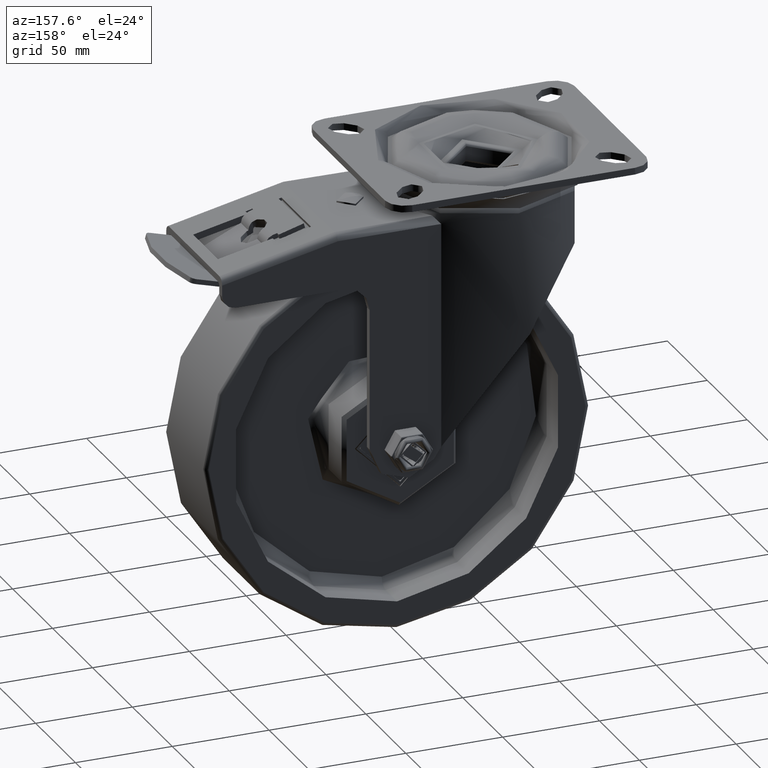
[diagram: clean part render]
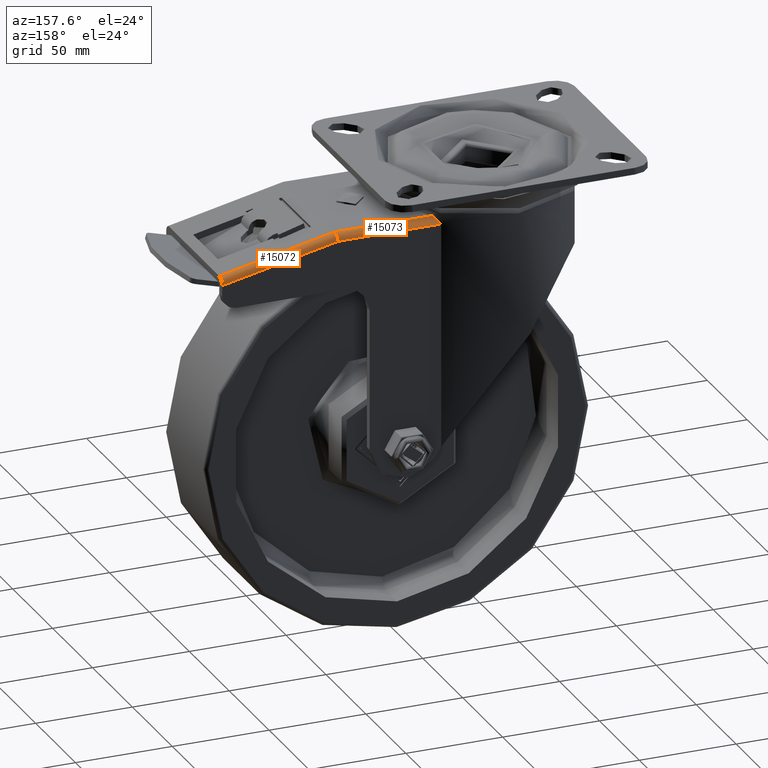
[diagram: same view with one multi-face feature highlighted, each face labeled with its STEP entity id]
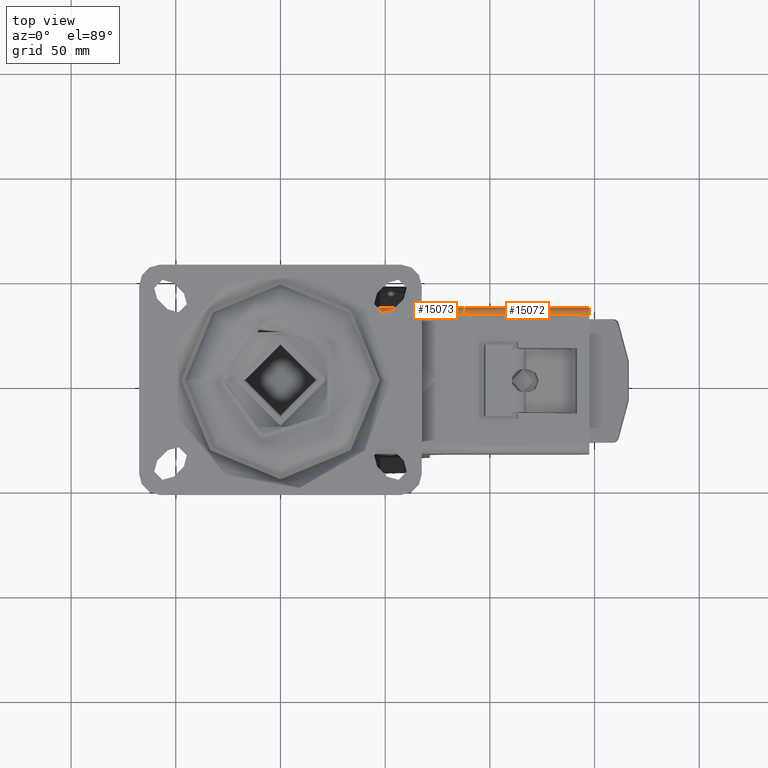
[diagram: same view with one multi-face feature highlighted, each face labeled with its STEP entity id]
A machine part, auxiliary view. The highlighted faces form ONE feature: a constant-radius fillet chain: 2 tangent blend faces with common blend radius 3.5 mm. The faces share edges in the B-rep.
A second angle (top view) of the same feature is appended — it is thin or edge-on in the first view.
Their STEP definitions:
[1] entity #15073 (Cylinder):
#40=ELLIPSE('',#16502,3.52034161889912,3.5);
#622=B_SPLINE_CURVE_WITH_KNOTS('',3,(#29073,#29074,#29075,#29076,#29077,
#29078,#29079,#29080,#29081,#29082),.UNSPECIFIED.,.F.,.F.,(4,2,2,2,4),(-0.625228901705066,
-0.444294595247492,-0.263360288789919,-0.13168014439496,0.),
 .UNSPECIFIED.);
#2406=FACE_OUTER_BOUND('',#3400,.T.);
#3400=EDGE_LOOP('',(#12455,#12456,#12457,#12458));
#4332=LINE('',#29071,#5395);
#4333=LINE('',#29083,#5396);
#5395=VECTOR('',#19138,10.);
#5396=VECTOR('',#19139,10.);
#7302=VERTEX_POINT('',#29061);
#7305=VERTEX_POINT('',#29066);
#7306=VERTEX_POINT('',#29070);
#7307=VERTEX_POINT('',#29072);
#9114=EDGE_CURVE('',#7305,#7302,#40,.T.);
#9115=EDGE_CURVE('',#7305,#7306,#4332,.T.);
#9116=EDGE_CURVE('',#7306,#7307,#622,.F.);
#9117=EDGE_CURVE('',#7307,#7302,#4333,.T.);
#12455=ORIENTED_EDGE('',*,*,#9115,.T.);
#12456=ORIENTED_EDGE('',*,*,#9116,.T.);
#12457=ORIENTED_EDGE('',*,*,#9117,.T.);
#12458=ORIENTED_EDGE('',*,*,#9114,.F.);
#14460=CYLINDRICAL_SURFACE('',#16503,3.5);
#15073=ADVANCED_FACE('',(#2406),#14460,.T.);
#16502=AXIS2_PLACEMENT_3D('',#29068,#19134,#19135);
#16503=AXIS2_PLACEMENT_3D('',#29069,#19136,#19137);
#19134=DIRECTION('center_axis',(0.994221691784138,0.,-0.107346297495005));
#19135=DIRECTION('ref_axis',(0.107346297495005,-1.13030830670877E-15,0.994221691784138));
#19136=DIRECTION('center_axis',(-1.,-1.24196705560202E-16,0.));
#19137=DIRECTION('ref_axis',(0.,0.707106781186548,0.707106781186548));
#19138=DIRECTION('',(-1.,-1.24196705560202E-16,0.));
#19139=DIRECTION('',(1.,1.24196705560202E-16,0.));
#29061=CARTESIAN_POINT('',(88.,31.5,-18.5));
#29066=CARTESIAN_POINT('',(87.6221043612936,35.,-22.));
#29068=CARTESIAN_POINT('Origin',(87.6221043612936,31.5,-22.));
#29069=CARTESIAN_POINT('Origin',(124.439903522969,31.5,-22.));
#29070=CARTESIAN_POINT('',(34.2928563989645,35.,-22.));
#29071=CARTESIAN_POINT('',(124.439903522969,35.,-22.));
#29072=CARTESIAN_POINT('',(37.5333185316726,31.5,-18.5));
#29073=CARTESIAN_POINT('Ctrl Pts',(37.5333185316726,31.5,-18.5));
#29074=CARTESIAN_POINT('Ctrl Pts',(37.1456021606921,31.9619772079986,-18.5));
#29075=CARTESIAN_POINT('Ctrl Pts',(36.7179669053213,32.4525501720949,-18.5956480322589));
#29076=CARTESIAN_POINT('Ctrl Pts',(35.8931427874258,33.362544974747,-18.9953552198696));
#29077=CARTESIAN_POINT('Ctrl Pts',(35.4960317121137,33.7824137014867,-19.2985568964875));
#29078=CARTESIAN_POINT('Ctrl Pts',(34.9320772658024,34.3637362242783,-19.9542122133705));
#29079=CARTESIAN_POINT('Ctrl Pts',(34.7032505279086,34.5938646742957,-20.3075091762502));
#29080=CARTESIAN_POINT('Ctrl Pts',(34.3826891024557,34.9124871605522,-21.1103626702354));
#29081=CARTESIAN_POINT('Ctrl Pts',(34.2928563989645,35.,-21.5610661853501));
#29082=CARTESIAN_POINT('Ctrl Pts',(34.2928563989645,35.,-22.));
#29083=CARTESIAN_POINT('',(124.439903522969,31.5,-18.5));
[2] entity #15072 (Cylinder):
#39=ELLIPSE('',#16501,3.58256543366694,3.5);
#40=ELLIPSE('',#16502,3.52034161889912,3.5);
#2405=FACE_OUTER_BOUND('',#3399,.T.);
#3399=EDGE_LOOP('',(#12451,#12452,#12453,#12454));
#4330=LINE('',#29063,#5393);
#4331=LINE('',#29067,#5394);
#5393=VECTOR('',#19130,10.);
#5394=VECTOR('',#19133,10.);
#7302=VERTEX_POINT('',#29061);
#7303=VERTEX_POINT('',#29062);
#7304=VERTEX_POINT('',#29064);
#7305=VERTEX_POINT('',#29066);
#9111=EDGE_CURVE('',#7302,#7303,#4330,.T.);
#9112=EDGE_CURVE('',#7303,#7304,#39,.T.);
#9113=EDGE_CURVE('',#7304,#7305,#4331,.T.);
#9114=EDGE_CURVE('',#7305,#7302,#40,.T.);
#12451=ORIENTED_EDGE('',*,*,#9111,.T.);
#12452=ORIENTED_EDGE('',*,*,#9112,.T.);
#12453=ORIENTED_EDGE('',*,*,#9113,.T.);
#12454=ORIENTED_EDGE('',*,*,#9114,.T.);
#14459=CYLINDRICAL_SURFACE('',#16500,3.5);
#15072=ADVANCED_FACE('',(#2405),#14459,.T.);
#16500=AXIS2_PLACEMENT_3D('',#29060,#19128,#19129);
#16501=AXIS2_PLACEMENT_3D('',#29065,#19131,#19132);
#16502=AXIS2_PLACEMENT_3D('',#29068,#19134,#19135);
#19128=DIRECTION('center_axis',(0.976953544828229,1.21334411753027E-16,
-0.213452035004487));
#19129=DIRECTION('ref_axis',(0.150933381409744,0.707106781186547,0.690810476452276));
#19130=DIRECTION('',(0.976953544828229,1.21334411753027E-16,-0.213452035004487));
#19131=DIRECTION('center_axis',(-1.,0.,0.));
#19132=DIRECTION('ref_axis',(0.,-7.74740228183904E-16,1.));
#19133=DIRECTION('',(-0.976953544828229,-1.21334411753027E-16,0.213452035004487));
#19134=DIRECTION('center_axis',(0.994221691784138,0.,-0.107346297495005));
#19135=DIRECTION('ref_axis',(0.107346297495005,-1.13030830670877E-15,0.994221691784138));
#29060=CARTESIAN_POINT('Origin',(103.860131181304,31.5,-25.5478041791619));
#29061=CARTESIAN_POINT('',(88.,31.5,-18.5));
#29062=CARTESIAN_POINT('',(147.5,31.5,-31.5));
#29063=CARTESIAN_POINT('',(104.607213303819,31.5,-22.1284667722631));
#29064=CARTESIAN_POINT('',(147.5,35.,-35.0825654336669));
#29065=CARTESIAN_POINT('Origin',(147.5,31.5,-35.0825654336669));
#29066=CARTESIAN_POINT('',(87.6221043612936,35.,-22.));
#29067=CARTESIAN_POINT('',(103.860131181304,35.,-25.5478041791619));
#29068=CARTESIAN_POINT('Origin',(87.6221043612936,31.5,-22.));